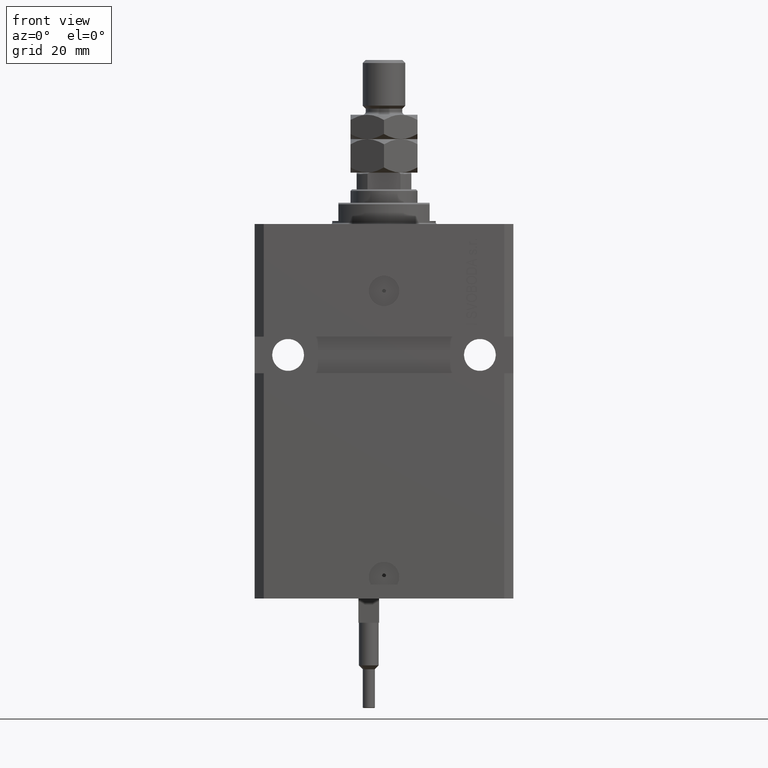
[diagram: clean part render]
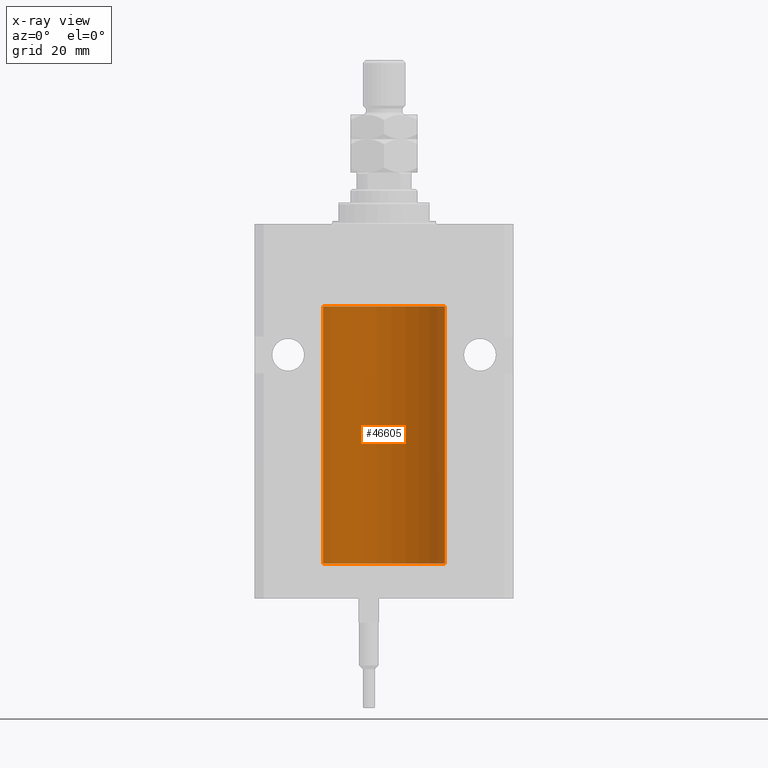
[diagram: x-ray — body ghosted, one internal face saturated and labeled with its STEP entity id]
A machine part, front view, then the same camera in x-ray: the body is ghosted and one INTERNAL B-rep face — a face not visible from any outside direction — is saturated and labeled: STEP entity #46605.
In plain terms, the highlighted cylindrical surface (partial cylindrical patch) has radius 20 mm, axis along (0, 0, 1).
Its self-contained STEP definition (entity closure, byte-faithful):
#1188 = CARTESIAN_POINT ( 'NONE',  ( -19.99769349528941476, 0.3253804398728720182, -109.5585582072768318 ) ) ;
#2407 = DIRECTION ( 'NONE',  ( -0.000000000000000000, -0.000000000000000000, 1.000000000000000000 ) ) ;
#2836 = CARTESIAN_POINT ( 'NONE',  ( 20.00000000000000000, 0.000000000000000000, -27.10000000000000142 ) ) ;
#2842 = CARTESIAN_POINT ( 'NONE',  ( 20.00000000000000000, 0.000000000000000000, -111.6000000000000085 ) ) ;
#2898 = ORIENTED_EDGE ( 'NONE', *, *, #9210, .F. ) ;
#4514 = DIRECTION ( 'NONE',  ( 1.000000000000000000, 0.000000000000000000, 0.000000000000000000 ) ) ;
#4549 = CARTESIAN_POINT ( 'NONE',  ( -20.00000000000010303, 3.580159290815452135E-13, -109.6250000000033253 ) ) ;
#4576 = EDGE_CURVE ( 'NONE', #11332, #21282, #28025, .T. ) ;
#6368 = ORIENTED_EDGE ( 'NONE', *, *, #15117, .T. ) ;
#8907 = ORIENTED_EDGE ( 'NONE', *, *, #45641, .T. ) ;
#9210 = EDGE_CURVE ( 'NONE', #18310, #35004, #48381, .T. ) ;
#9212 = CARTESIAN_POINT ( 'NONE',  ( -20.00000000000000000, 2.449293598294706513E-15, -111.6000000000000085 ) ) ;
#9249 = CARTESIAN_POINT ( 'NONE',  ( -19.99638934703457593, 0.3843678041337614260, -108.5004636297810094 ) ) ;
#10985 = DIRECTION ( 'NONE',  ( 1.000000000000000000, 0.000000000000000000, 0.000000000000000000 ) ) ;
#11332 = VERTEX_POINT ( 'NONE', #43936 ) ;
#13299 = CARTESIAN_POINT ( 'NONE',  ( -19.99999999999999289, 0.08259581631025748882, -108.3749999999999716 ) ) ;
#14030 = ORIENTED_EDGE ( 'NONE', *, *, #19377, .F. ) ;
#15117 = EDGE_CURVE ( 'NONE', #21874, #21079, #41991, .T. ) ;
#15637 = FACE_OUTER_BOUND ( 'NONE', #42723, .T. ) ;
#15891 = CYLINDRICAL_SURFACE ( 'NONE', #49655, 20.00000000000000000 ) ;
#15917 = DIRECTION ( 'NONE',  ( -0.000000000000000000, -0.000000000000000000, 1.000000000000000000 ) ) ;
#16355 = CARTESIAN_POINT ( 'NONE',  ( -20.00000000000010303, 3.580159290815452135E-13, -109.6250000000033253 ) ) ;
#16713 = EDGE_CURVE ( 'NONE', #21079, #21282, #44575, .T. ) ;
#17958 = AXIS2_PLACEMENT_3D ( 'NONE', #30958, #30202, #10985 ) ;
#18310 = VERTEX_POINT ( 'NONE', #29105 ) ;
#19168 = ORIENTED_EDGE ( 'NONE', *, *, #4576, .F. ) ;
#19377 = EDGE_CURVE ( 'NONE', #21874, #18310, #26834, .T. ) ;
#20639 = CARTESIAN_POINT ( 'NONE',  ( -20.00000000000000000, -1.494965790691426527E-14, -108.3750000000000000 ) ) ;
#20890 = CARTESIAN_POINT ( 'NONE',  ( -19.99023380173165876, 0.6249420416828411762, -108.8367079305639322 ) ) ;
#21079 = VERTEX_POINT ( 'NONE', #2836 ) ;
#21141 = CARTESIAN_POINT ( 'NONE',  ( -20.00000000000000355, 0.1631688615953337806, -109.6249999999998721 ) ) ;
#21282 = VERTEX_POINT ( 'NONE', #27330 ) ;
#21488 = CARTESIAN_POINT ( 'NONE',  ( 20.00000000000000000, 0.000000000000000000, -111.6000000000000085 ) ) ;
#21801 = B_SPLINE_CURVE_WITH_KNOTS ( 'NONE', 3,
 ( #20639, #13299, #36287, #40338, #9249, #24193, #20890, #43628, #23945, #1188, #21141, #16355 ),
 .UNSPECIFIED., .F., .F.,
 ( 4, 2, 2, 2, 2, 4 ),
 ( 1.555867690894744095E-18, 0.0002442693137305176681, 0.0004885386274610337099, 0.0009770772549220949586, 0.001465615882383156099, 0.001954154509844217673 ),
 .UNSPECIFIED. ) ;
#21874 = VERTEX_POINT ( 'NONE', #21488 ) ;
#23945 = CARTESIAN_POINT ( 'NONE',  ( -19.99253506710754991, 0.5587120480776772702, -109.3251162083024894 ) ) ;
#24016 = DIRECTION ( 'NONE',  ( 1.000000000000000000, 0.000000000000000000, 0.000000000000000000 ) ) ;
#24193 = CARTESIAN_POINT ( 'NONE',  ( -19.99256581701871838, 0.5573276956901952461, -108.6734856577094916 ) ) ;
#24222 = CARTESIAN_POINT ( 'NONE',  ( 0.000000000000000000, 0.000000000000000000, -111.6000000000000085 ) ) ;
#26834 = CIRCLE ( 'NONE', #49390, 20.00000000000000000 ) ;
#27330 = CARTESIAN_POINT ( 'NONE',  ( -20.00000000000000000, 2.449293598294706513E-15, -27.10000000000000142 ) ) ;
#28025 = LINE ( 'NONE', #47470, #29769 ) ;
#28371 = VECTOR ( 'NONE', #45033, 1000.000000000000000 ) ;
#29105 = CARTESIAN_POINT ( 'NONE',  ( -20.00000000000000000, 2.449293598294706513E-15, -111.6000000000000085 ) ) ;
#29769 = VECTOR ( 'NONE', #15917, 1000.000000000000000 ) ;
#30202 = DIRECTION ( 'NONE',  ( 0.000000000000000000, 0.000000000000000000, 1.000000000000000000 ) ) ;
#30958 = CARTESIAN_POINT ( 'NONE',  ( 0.000000000000000000, 0.000000000000000000, -27.10000000000000142 ) ) ;
#33654 = ORIENTED_EDGE ( 'NONE', *, *, #16713, .T. ) ;
#35004 = VERTEX_POINT ( 'NONE', #4549 ) ;
#35586 = DIRECTION ( 'NONE',  ( -0.000000000000000000, -0.000000000000000000, 1.000000000000000000 ) ) ;
#36287 = CARTESIAN_POINT ( 'NONE',  ( -19.99947377218718358, 0.1636439183262759223, -108.3912636400465459 ) ) ;
#40338 = CARTESIAN_POINT ( 'NONE',  ( -19.99766197842594906, 0.3150331617867563327, -108.4540207010250299 ) ) ;
#41991 = LINE ( 'NONE', #2842, #28371 ) ;
#42723 = EDGE_LOOP ( 'NONE', ( #2898, #14030, #6368, #33654, #19168, #8907 ) ) ;
#43203 = DIRECTION ( 'NONE',  ( 0.000000000000000000, 0.000000000000000000, 1.000000000000000000 ) ) ;
#43628 = CARTESIAN_POINT ( 'NONE',  ( -19.99023018003212471, 0.6250578794725484277, -109.1628480970496895 ) ) ;
#43936 = CARTESIAN_POINT ( 'NONE',  ( -20.00000000000000000, -1.494965790691426527E-14, -108.3750000000000000 ) ) ;
#44575 = CIRCLE ( 'NONE', #17958, 20.00000000000000000 ) ;
#45033 = DIRECTION ( 'NONE',  ( -0.000000000000000000, -0.000000000000000000, 1.000000000000000000 ) ) ;
#45157 = VECTOR ( 'NONE', #2407, 1000.000000000000000 ) ;
#45641 = EDGE_CURVE ( 'NONE', #11332, #35004, #21801, .T. ) ;
#46605 = ADVANCED_FACE ( 'NONE', ( #15637 ), #15891, .F. ) ;
#47006 = CARTESIAN_POINT ( 'NONE',  ( 0.000000000000000000, 0.000000000000000000, -111.6000000000000085 ) ) ;
#47470 = CARTESIAN_POINT ( 'NONE',  ( -20.00000000000000000, 2.449293598294706513E-15, -111.6000000000000085 ) ) ;
#48381 = LINE ( 'NONE', #9212, #45157 ) ;
#49390 = AXIS2_PLACEMENT_3D ( 'NONE', #47006, #43203, #24016 ) ;
#49655 = AXIS2_PLACEMENT_3D ( 'NONE', #24222, #35586, #4514 ) ;